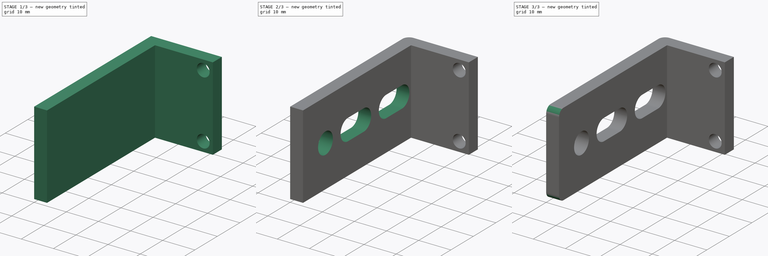
[diagram: build sequence overview — one tinted view per stage of 3, left to right]
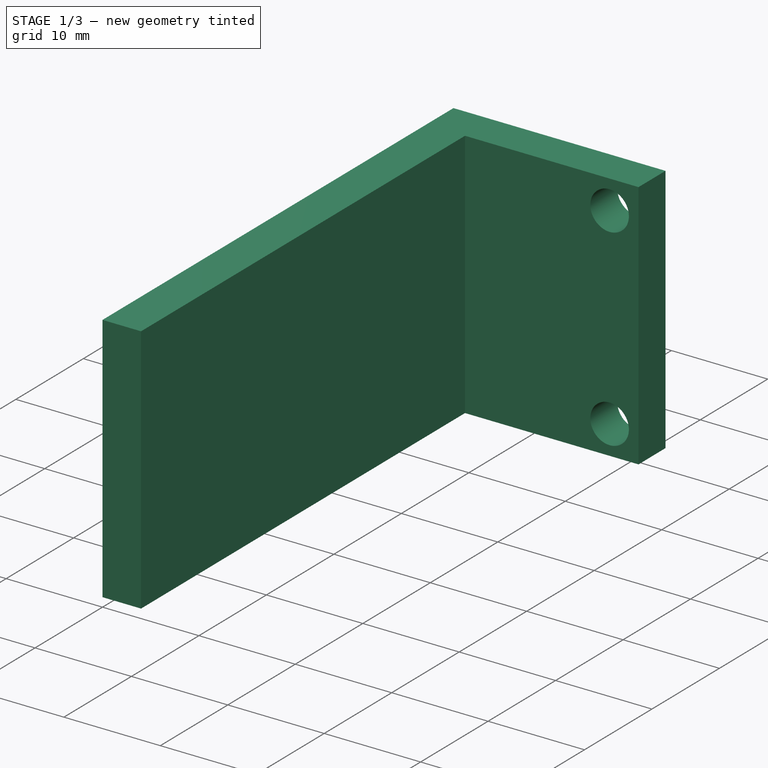
[diagram: stage 1 of 3 — iso view after this stage's code; geometry added in this stage tinted green]
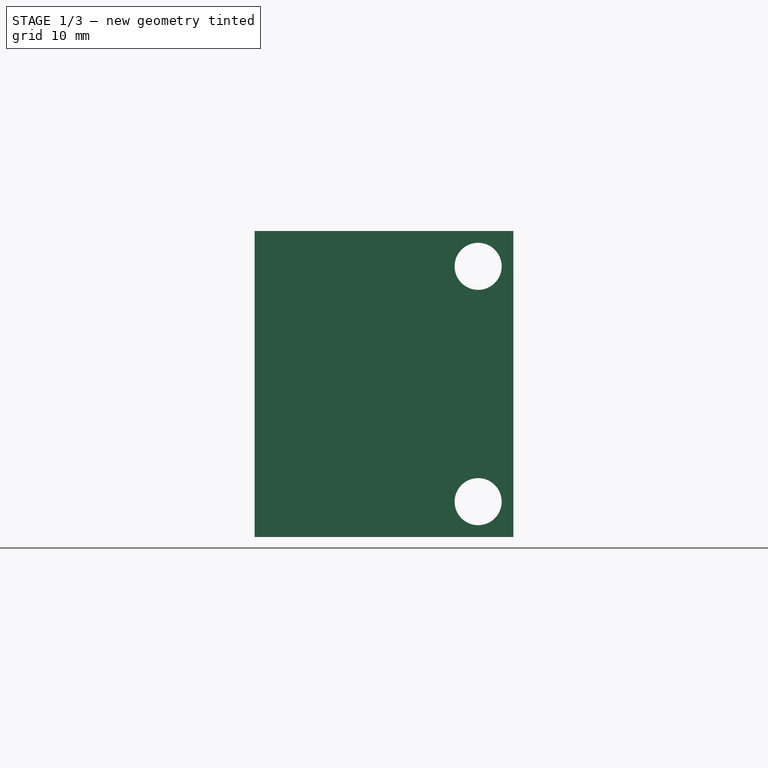
[diagram: stage 1 of 3 — front view after this stage's code; geometry added in this stage tinted green]
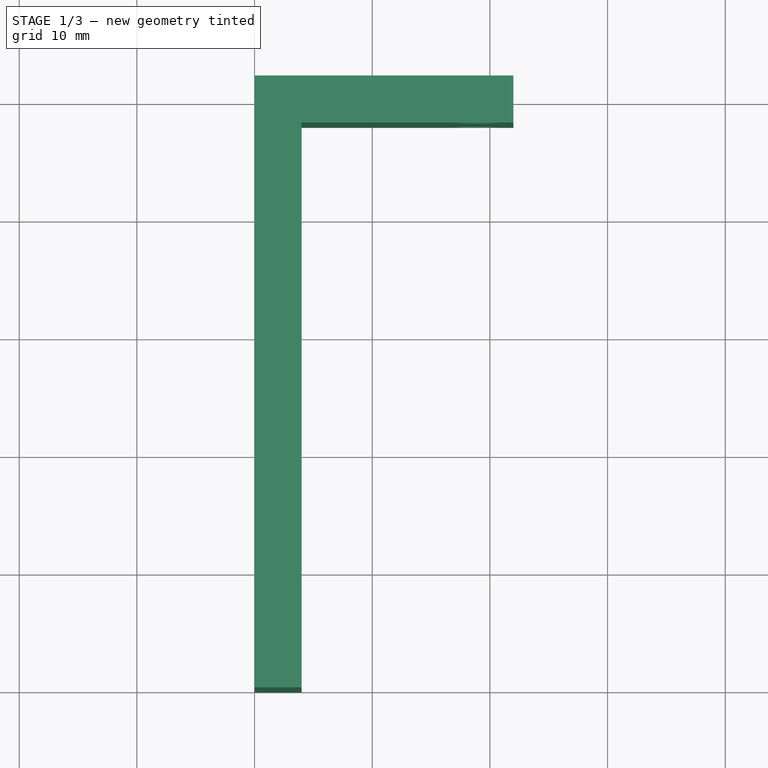
[diagram: stage 1 of 3 — top view after this stage's code; geometry added in this stage tinted green]
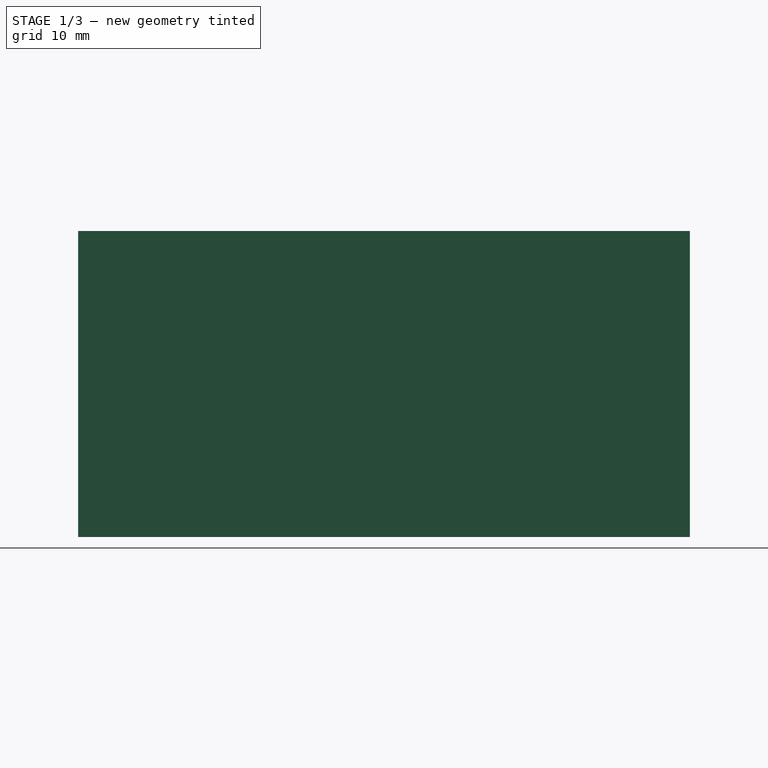
[diagram: stage 1 of 3 — right view after this stage's code; geometry added in this stage tinted green]
FCSTD DOCUMENT  (FreeCAD 0.19R23964 (Git))
Label: endstopmount1b
License: All rights reserved
LicenseURL: http://en.wikipedia.org/wiki/All_rights_reserved
objects: Sketcher::SketchObject×3, PartDesign::Fillet×3, PartDesign::Pocket×2, PartDesign::Pad×1, PartDesign::Body×1
note: 16 computed .brp shape members not serialized (recipe doc carries the construction recipe); baked Part::Feature solids carry a one-line shape summary decoded from their .brp

FEATURE [Sketcher::SketchObject] Sketch
  FullyConstrained = false
  MapMode = 5
  Support = -> [XY_Plane]
  sketch-geometry (6):
    g0: LineSegment StartX=0 StartY=0 StartZ=0 EndX=0 EndY=52 EndZ=0
    g1: LineSegment StartX=0 StartY=52 StartZ=0 EndX=22 EndY=52 EndZ=0
    g2: LineSegment StartX=22 StartY=52 StartZ=0 EndX=22 EndY=48 EndZ=0
    g3: LineSegment StartX=22 StartY=48 StartZ=0 EndX=4 EndY=48 EndZ=0
    g4: LineSegment StartX=4 StartY=48 StartZ=0 EndX=4 EndY=0 EndZ=0
    g5: LineSegment StartX=4 StartY=0 StartZ=0 EndX=0 EndY=0 EndZ=0
  constraints (17):
    c: Coincident(g0,g1)
    c: Coincident(g1,g2)
    c: Coincident(g2,g3)
    c: Coincident(g3,g4)
    c: Coincident(g4,g5)
    c: Coincident(g5,g0)
    c: Coincident(g0,g-1)
    c: Horizontal(g5)
    c: Vertical(g0)
    c: Vertical(g4)
    c: Vertical(g2)
    c: Horizontal(g1)
    c: Horizontal(g3)
    c: DistanceY(g0,g0) = 52
    c: DistanceX(g1,g1) = 22
    c: DistanceX(g5,g5) = 4
    c: DistanceY(g2,g1) = 4
FEATURE [PartDesign::Pad] Pad
  AllowMultiFace = false
  Direction = (1,1,1)
  Length = 26
  Length2 = 100
  Profile = -> Sketch
  Type = 0
FEATURE [Sketcher::SketchObject] Sketch001
  FullyConstrained = false
  MapMode = 5
  Placement = pos=(0,52,0) rot=(0,0.707107,0.707107;3.14159rad)
  Support = -> [Pad]
  sketch-geometry (2):
    g0: Circle CenterX=-19 CenterY=3 CenterZ=0 NormalX=0 NormalY=0 NormalZ=1 AngleXU=0 Radius=2
    g1: Circle CenterX=-19 CenterY=23 CenterZ=0 NormalX=0 NormalY=0 NormalZ=1 AngleXU=0 Radius=2
  constraints (6):
    c: DistanceY(g-1,g0) = 3
    c: DistanceX(g0,g-1) = 19
    c: Radius(g0) = 2
    c: DistanceX(g1,g-1) = 19
    c: DistanceY(g-1,g1) = 23
    c: Radius(g1) = 2
FEATURE [PartDesign::Pocket] Pocket
  AllowMultiFace = false
  BaseFeature = -> Pad
  Length = 4
  Length2 = 100
  Profile = -> Sketch001
  Type = 0
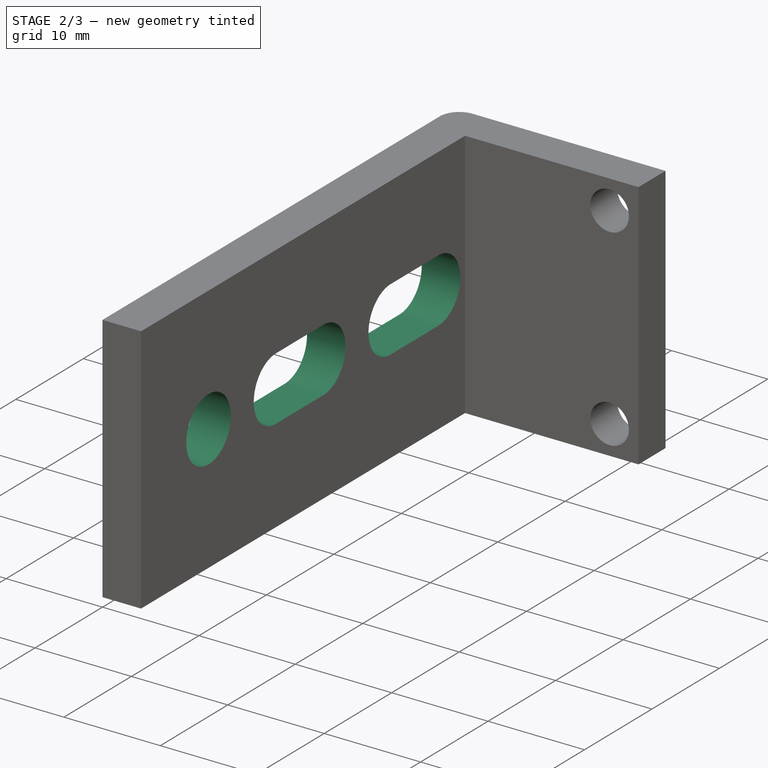
[diagram: stage 2 of 3 — iso view after this stage's code; geometry added in this stage tinted green]
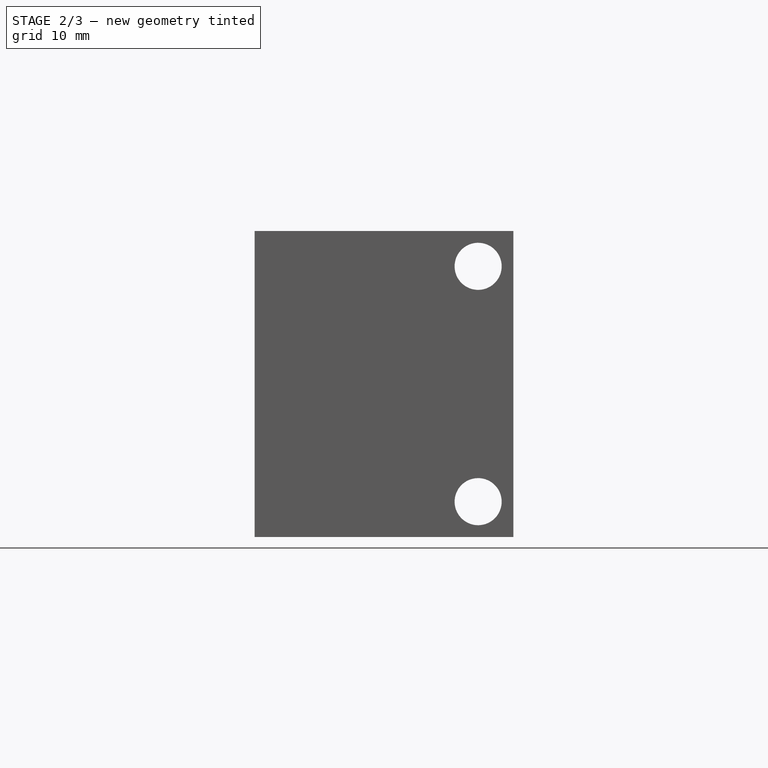
[diagram: stage 2 of 3 — front view after this stage's code; geometry added in this stage tinted green]
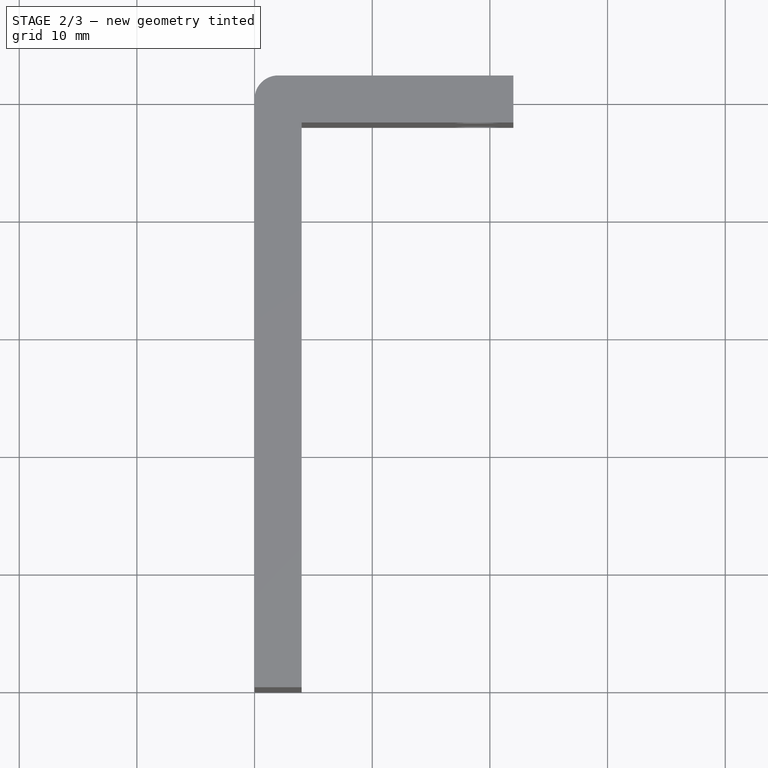
[diagram: stage 2 of 3 — top view after this stage's code; geometry added in this stage tinted green]
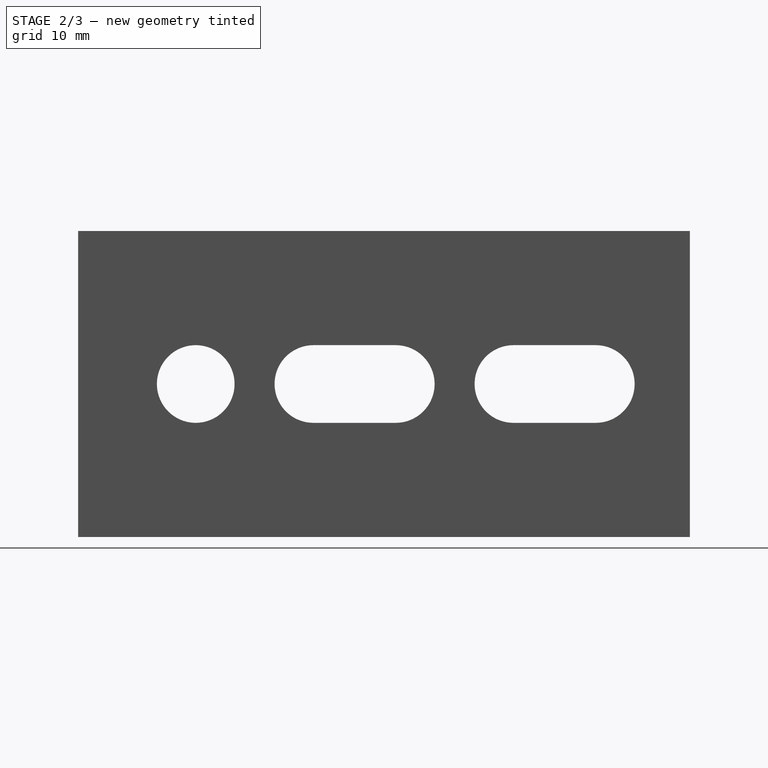
[diagram: stage 2 of 3 — right view after this stage's code; geometry added in this stage tinted green]
FEATURE [Sketcher::SketchObject] Sketch002
  FullyConstrained = false
  MapMode = 5
  Placement = pos=(0,0,0) rot=(0.57735,-0.57735,-0.57735;2.0944rad)
  Support = -> [Pocket]
  sketch-geometry (9):
    g0: Circle CenterX=-10 CenterY=13 CenterZ=0 NormalX=0 NormalY=0 NormalZ=1 AngleXU=0 Radius=3.3
    g1: ArcOfCircle CenterX=-27 CenterY=13 CenterZ=0 NormalX=0 NormalY=0 NormalZ=1 AngleXU=0 Radius=3.3 StartAngle=1.5708 EndAngle=4.71239
    g2: ArcOfCircle CenterX=-20 CenterY=13 CenterZ=0 NormalX=0 NormalY=0 NormalZ=1 AngleXU=0 Radius=3.3 StartAngle=4.71239 EndAngle=7.85398
    g3: LineSegment StartX=-27 StartY=9.7 StartZ=0 EndX=-20 EndY=9.7 EndZ=0
    g4: LineSegment StartX=-27 StartY=16.3 StartZ=0 EndX=-20 EndY=16.3 EndZ=0
    g5: ArcOfCircle CenterX=-44 CenterY=13 CenterZ=0 NormalX=0 NormalY=0 NormalZ=1 AngleXU=0 Radius=3.3 StartAngle=1.5708 EndAngle=4.71239
    g6: ArcOfCircle CenterX=-37 CenterY=13 CenterZ=0 NormalX=0 NormalY=0 NormalZ=1 AngleXU=0 Radius=3.3 StartAngle=4.71239 EndAngle=7.85398
    g7: LineSegment StartX=-44 StartY=9.7 StartZ=0 EndX=-37 EndY=9.7 EndZ=0
    g8: LineSegment StartX=-44 StartY=16.3 StartZ=0 EndX=-37 EndY=16.3 EndZ=0
  constraints (23):
    c: DistanceY(g-1,g0) = 13
    c: DistanceX(g0,g-1) = 10
    c: Radius(g0) = 3.3
    c: Tangent(g1,g4) = 1.5708
    c: Tangent(g1,g3) = -1.5708
    c: Tangent(g3,g2) = -1.5708
    c: Tangent(g4,g2) = 1.5708
    c: Horizontal(g3)
    c: Equal(g1,g2)
    c: DistanceY(g-1,g2) = 13
    c: DistanceX(g2,g-1) = 20
    c: DistanceX(g1,g2) = 7
    c: DistanceY(g1,g1) = 6.6
    c: Tangent(g5,g8) = 1.5708
    c: Tangent(g5,g7) = -1.5708
    c: Tangent(g7,g6) = -1.5708
    c: Tangent(g8,g6) = 1.5708
    c: Horizontal(g7)
    c: Equal(g5,g6)
    c: DistanceX(g6,g-1) = 37
    c: DistanceX(g5,g6) = 7
    c: DistanceY(g-1,g6) = 13
    c: DistanceY(g5,g5) = 6.6
FEATURE [PartDesign::Pocket] Pocket001
  AllowMultiFace = false
  BaseFeature = -> Pocket
  Length = 4
  Length2 = 100
  Profile = -> Sketch002
  Type = 0
FEATURE [PartDesign::Fillet] Fillet
  Base = -> Pocket001 [Edge4]
  BaseFeature = -> Pocket001
  Radius = 2
  SupportTransform = false
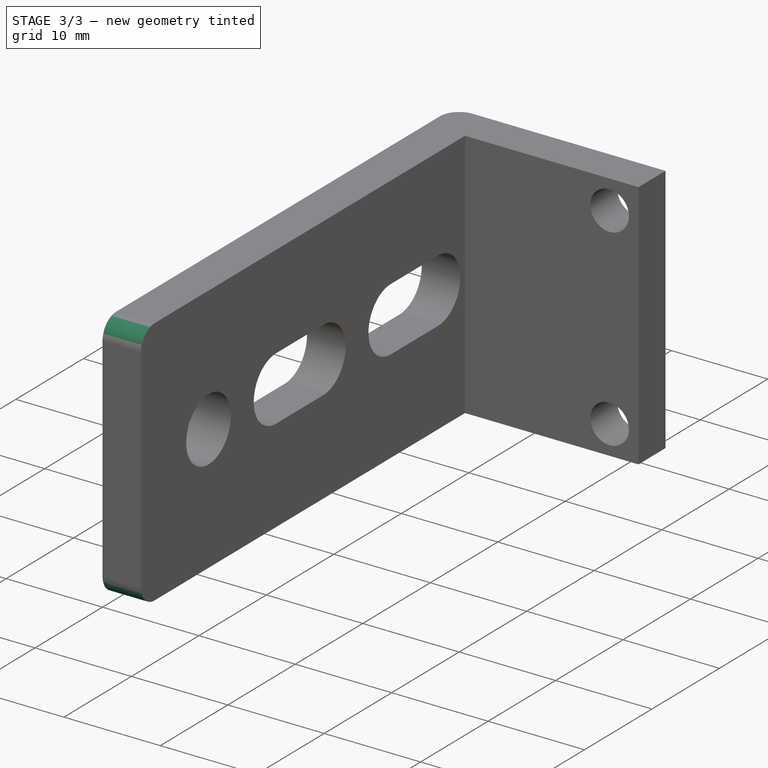
[diagram: stage 3 of 3 — iso view after this stage's code; geometry added in this stage tinted green]
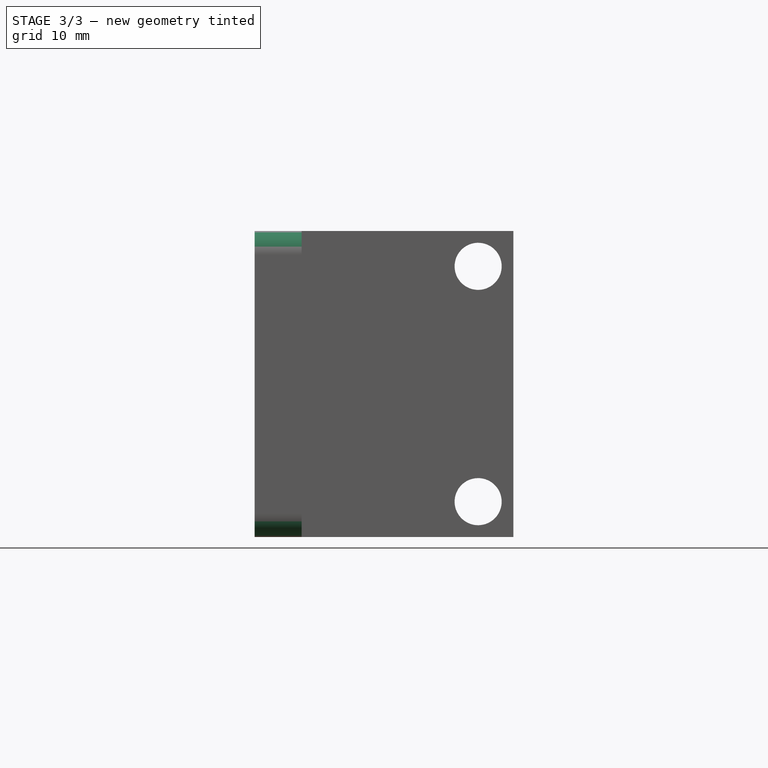
[diagram: stage 3 of 3 — front view after this stage's code; geometry added in this stage tinted green]
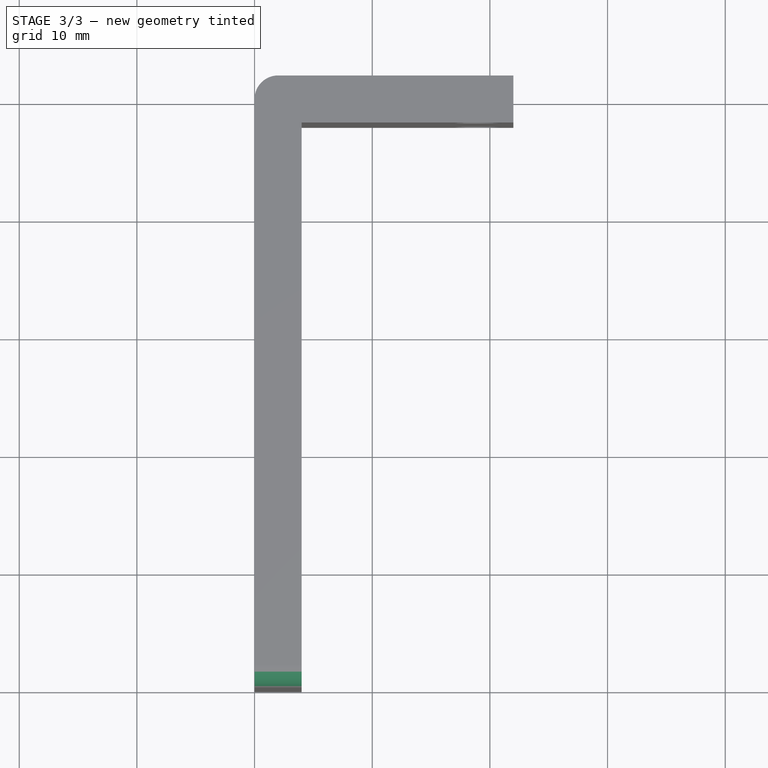
[diagram: stage 3 of 3 — top view after this stage's code; geometry added in this stage tinted green]
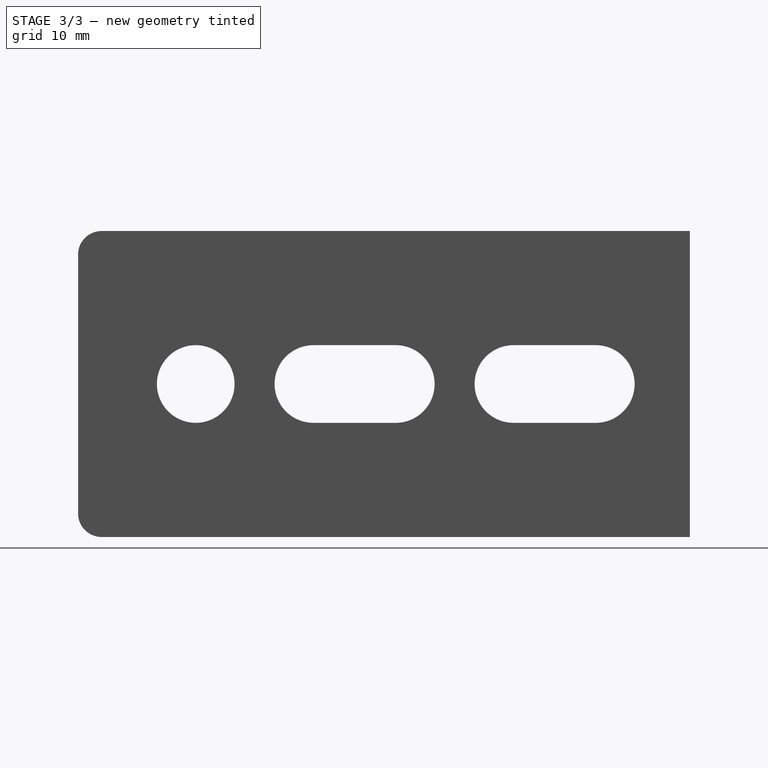
[diagram: stage 3 of 3 — right view after this stage's code; geometry added in this stage tinted green]
FEATURE [PartDesign::Fillet] Fillet001
  Base = -> Fillet [Edge15]
  BaseFeature = -> Fillet
  Radius = 2
  SupportTransform = false
FEATURE [PartDesign::Fillet] Fillet002
  Base = -> Fillet001 [Edge26]
  BaseFeature = -> Fillet001
  Radius = 2
  SupportTransform = false
FEATURE [PartDesign::Body] Body
  Group = -> [Sketch,Pad,Sketch001,Pocket,Sketch002,Pocket001,Fillet,Fillet001,Fillet002]
  Origin = -> Origin
  Tip = -> Fillet002
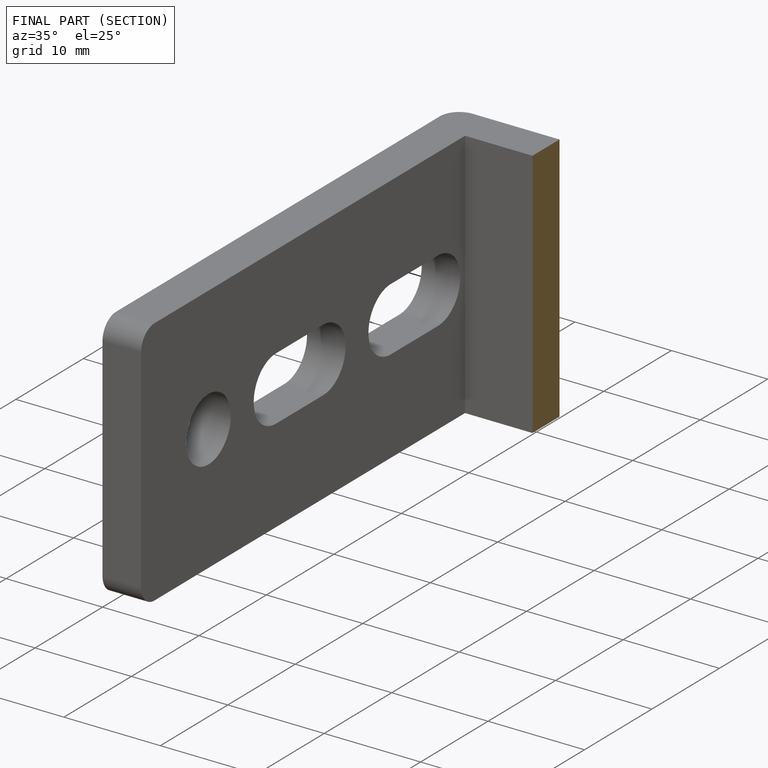
[diagram: finished part — half-section view (interior)]
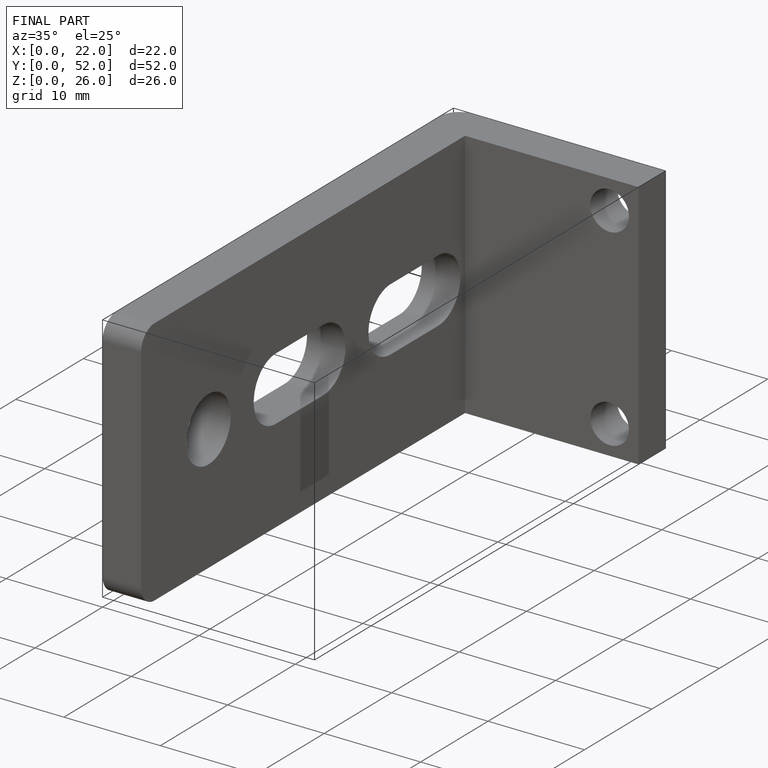
[diagram: finished part — iso view with bounding-box wireframe]
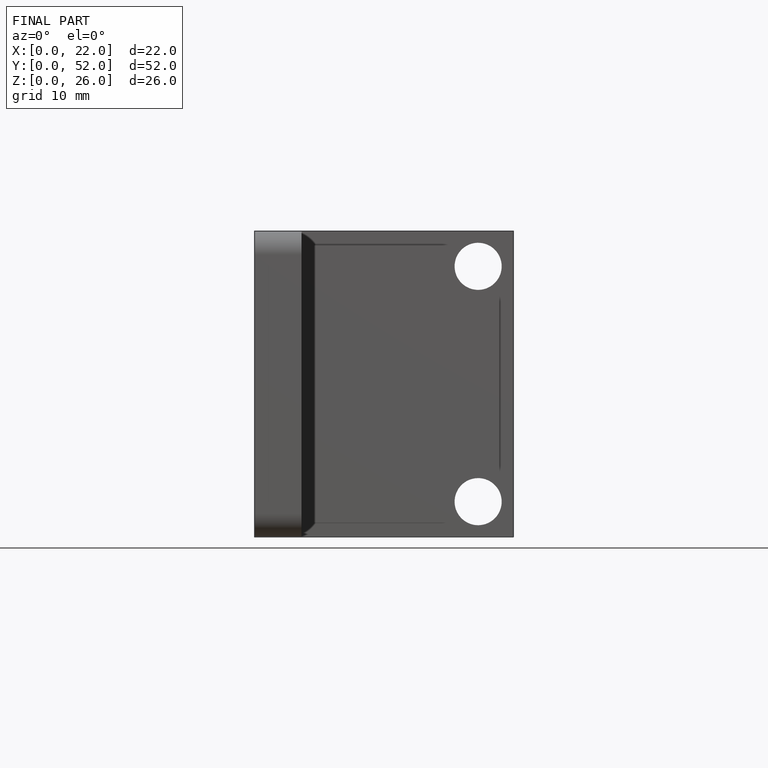
[diagram: finished part — front view with bounding-box wireframe]
